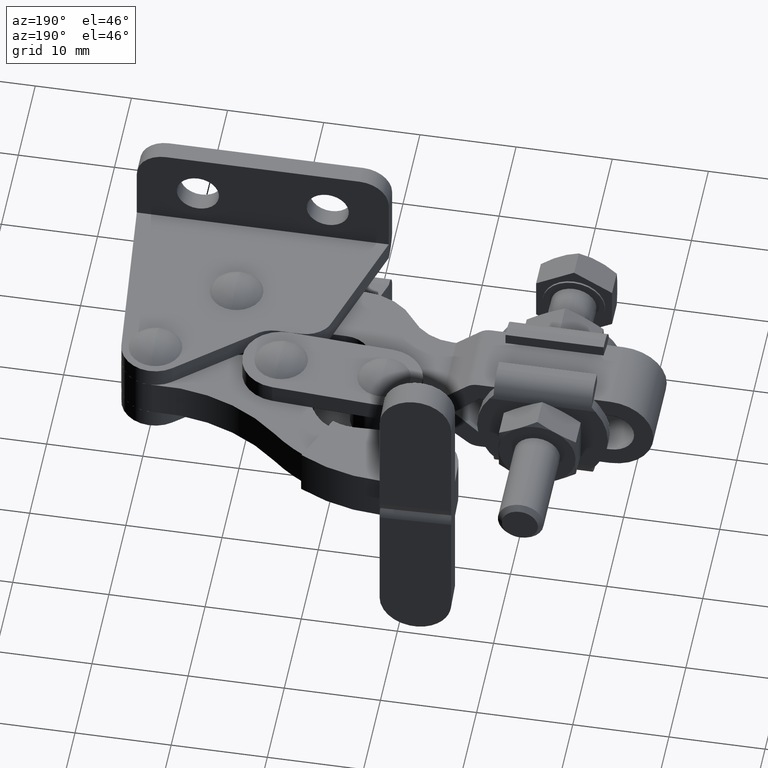
[diagram: clean part render]
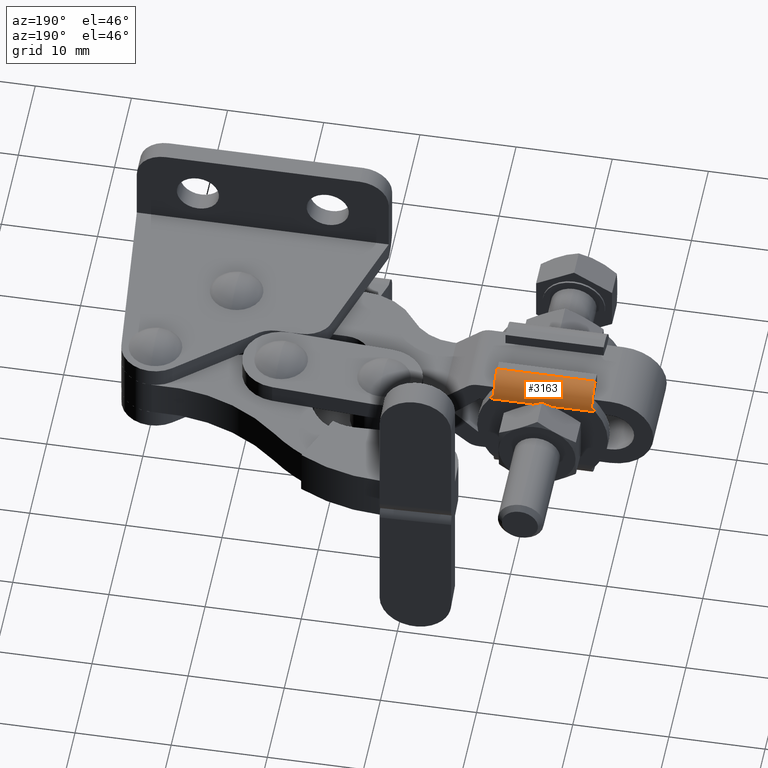
[diagram: same view with one face highlighted and labeled with its STEP entity id]
A machine part, auxiliary view. The second image highlights one B-rep face of the part: STEP entity #3163.
In plain terms, the highlighted cylindrical surface (edge-blend (fillet) strip) has radius 2.2 mm, axis along (1, 0, 0).
Its self-contained STEP definition (entity closure, byte-faithful):
#331 = CARTESIAN_POINT ( 'NONE',  ( -42.68164272060499100, 24.10000000000010800, 4.199999999990546400 ) ) ;
#726 = EDGE_LOOP ( 'NONE', ( #8091, #7959, #4035, #6109, #6427, #4999, #1959 ) ) ;
#761 = VERTEX_POINT ( 'NONE', #4459 ) ;
#837 = EDGE_CURVE ( 'NONE', #5778, #1162, #8415, .T. ) ;
#896 = CARTESIAN_POINT ( 'NONE',  ( -42.68164272060499100, 26.29999999999994400, 1.999999999990455200 ) ) ;
#1046 = AXIS2_PLACEMENT_3D ( 'NONE', #4811, #1136, #8051 ) ;
#1136 = DIRECTION ( 'NONE',  ( 1.000000000000000000, 2.628336274655625900E-018, 1.387778780781445400E-017 ) ) ;
#1153 = VERTEX_POINT ( 'NONE', #9515 ) ;
#1162 = VERTEX_POINT ( 'NONE', #1780 ) ;
#1464 = VERTEX_POINT ( 'NONE', #7222 ) ;
#1572 = CYLINDRICAL_SURFACE ( 'NONE', #4283, 2.199999999999965100 ) ;
#1618 = CARTESIAN_POINT ( 'NONE',  ( -37.58360388199261600, 26.24242852856292200, 2.499999999990473000 ) ) ;
#1769 = DIRECTION ( 'NONE',  ( 1.000000000000000000, 2.628336274655625900E-018, 1.387778780781445400E-017 ) ) ;
#1780 = CARTESIAN_POINT ( 'NONE',  ( -37.18255188665791900, 26.30000000000001100, 1.999999999990430100 ) ) ;
#1959 = ORIENTED_EDGE ( 'NONE', *, *, #837, .F. ) ;
#2153 = EDGE_CURVE ( 'NONE', #761, #1153, #2644, .T. ) ;
#2210 = DIRECTION ( 'NONE',  ( -1.000000000000000000, -2.628336274655625900E-018, -1.387778780781445400E-017 ) ) ;
#2257 = LINE ( 'NONE', #331, #4066 ) ;
#2338 = CARTESIAN_POINT ( 'NONE',  ( -37.30938717547512300, 26.30000000000007500, 2.174369693529345100 ) ) ;
#2502 = DIRECTION ( 'NONE',  ( 0.0000000000000000000, 0.0000000000000000000, -1.000000000000000000 ) ) ;
#2515 = CARTESIAN_POINT ( 'NONE',  ( -47.92016110081064500, 26.27957070673059900, 2.340851075751972000 ) ) ;
#2644 = B_SPLINE_CURVE_WITH_KNOTS ( 'NONE', 3,
 ( #8497, #5007, #2515, #4351 ),
 .UNSPECIFIED., .F., .F.,
 ( 4, 4 ),
 ( 1.110764993427086700E-017, 0.0006435504465738248000 ),
 .UNSPECIFIED. ) ;
#2977 = VERTEX_POINT ( 'NONE', #4668 ) ;
#3163 = ADVANCED_FACE ( 'NONE', ( #5726 ), #1572, .T. ) ;
#3232 = AXIS2_PLACEMENT_3D ( 'NONE', #4633, #2210, #5755 ) ;
#3435 = CARTESIAN_POINT ( 'NONE',  ( -48.24672264455928400, 24.10000000000010800, 1.999999999990455200 ) ) ;
#3743 = CARTESIAN_POINT ( 'NONE',  ( -37.44312434039928000, 26.27957070673059900, 2.340851075751979600 ) ) ;
#3946 = EDGE_CURVE ( 'NONE', #1162, #1464, #6165, .T. ) ;
#4035 = ORIENTED_EDGE ( 'NONE', *, *, #5702, .T. ) ;
#4066 = VECTOR ( 'NONE', #1769, 1000.000000000000000 ) ;
#4092 = VECTOR ( 'NONE', #7810, 1000.000000000000000 ) ;
#4283 = AXIS2_PLACEMENT_3D ( 'NONE', #3435, #6461, #2502 ) ;
#4302 = VECTOR ( 'NONE', #6963, 1000.000000000000000 ) ;
#4351 = CARTESIAN_POINT ( 'NONE',  ( -47.77968155921736600, 26.24242852856292200, 2.499999999990473000 ) ) ;
#4459 = CARTESIAN_POINT ( 'NONE',  ( -48.18073355455200600, 26.30000000000001100, 1.999999999990447400 ) ) ;
#4633 = CARTESIAN_POINT ( 'NONE',  ( -37.58360388199261600, 24.10000000000010800, 1.999999999990455200 ) ) ;
#4634 = CARTESIAN_POINT ( 'NONE',  ( -47.77968155921736600, 24.10000000000010800, 4.199999999990546400 ) ) ;
#4668 = CARTESIAN_POINT ( 'NONE',  ( -37.58360388199261600, 24.10000000000010800, 4.199999999990546400 ) ) ;
#4811 = CARTESIAN_POINT ( 'NONE',  ( -47.77968155921736600, 24.10000000000010800, 1.999999999990455200 ) ) ;
#4999 = ORIENTED_EDGE ( 'NONE', *, *, #3946, .F. ) ;
#5007 = CARTESIAN_POINT ( 'NONE',  ( -48.05389826573480100, 26.30000000000007200, 2.174369693529364200 ) ) ;
#5009 = CARTESIAN_POINT ( 'NONE',  ( -37.18255188665791900, 26.30000000000001100, 1.999999999990430100 ) ) ;
#5186 = EDGE_CURVE ( 'NONE', #9805, #2977, #2257, .T. ) ;
#5702 = EDGE_CURVE ( 'NONE', #1153, #9805, #9104, .T. ) ;
#5707 = CARTESIAN_POINT ( 'NONE',  ( -42.68164272060499100, 26.29999999999994400, 1.999999999990455200 ) ) ;
#5726 = FACE_OUTER_BOUND ( 'NONE', #726, .T. ) ;
#5755 = DIRECTION ( 'NONE',  ( 0.0000000000000000000, -1.577021341797122500E-015, -1.000000000000000000 ) ) ;
#5778 = VERTEX_POINT ( 'NONE', #6670 ) ;
#6109 = ORIENTED_EDGE ( 'NONE', *, *, #5186, .T. ) ;
#6165 = B_SPLINE_CURVE_WITH_KNOTS ( 'NONE', 3,
 ( #5009, #2338, #3743, #1618 ),
 .UNSPECIFIED., .F., .F.,
 ( 4, 4 ),
 ( 3.384100495471594800E-017, 0.0006435504465738969000 ),
 .UNSPECIFIED. ) ;
#6427 = ORIENTED_EDGE ( 'NONE', *, *, #6914, .T. ) ;
#6461 = DIRECTION ( 'NONE',  ( 1.000000000000000000, 2.628336274655625900E-018, 1.387778780781445400E-017 ) ) ;
#6670 = CARTESIAN_POINT ( 'NONE',  ( -42.68164272060499100, 26.29999999999994700, 1.999999999990457000 ) ) ;
#6816 = CIRCLE ( 'NONE', #3232, 2.199999999999965100 ) ;
#6914 = EDGE_CURVE ( 'NONE', #2977, #1464, #6816, .T. ) ;
#6963 = DIRECTION ( 'NONE',  ( 1.000000000000000000, 2.628336274655625900E-018, 1.387778780781445400E-017 ) ) ;
#7222 = CARTESIAN_POINT ( 'NONE',  ( -37.58360388199261600, 26.24242852856292200, 2.499999999990473000 ) ) ;
#7810 = DIRECTION ( 'NONE',  ( 1.000000000000000000, 2.628336274655625900E-018, 1.387778780781445400E-017 ) ) ;
#7959 = ORIENTED_EDGE ( 'NONE', *, *, #2153, .T. ) ;
#8051 = DIRECTION ( 'NONE',  ( 0.0000000000000000000, 0.0000000000000000000, -1.000000000000000000 ) ) ;
#8091 = ORIENTED_EDGE ( 'NONE', *, *, #8386, .F. ) ;
#8386 = EDGE_CURVE ( 'NONE', #761, #5778, #10009, .T. ) ;
#8415 = LINE ( 'NONE', #5707, #4302 ) ;
#8497 = CARTESIAN_POINT ( 'NONE',  ( -48.18073355455200600, 26.30000000000001100, 1.999999999990447400 ) ) ;
#9104 = CIRCLE ( 'NONE', #1046, 2.199999999999965100 ) ;
#9515 = CARTESIAN_POINT ( 'NONE',  ( -47.77968155921736600, 26.24242852856292200, 2.499999999990473000 ) ) ;
#9805 = VERTEX_POINT ( 'NONE', #4634 ) ;
#10009 = LINE ( 'NONE', #896, #4092 ) ;